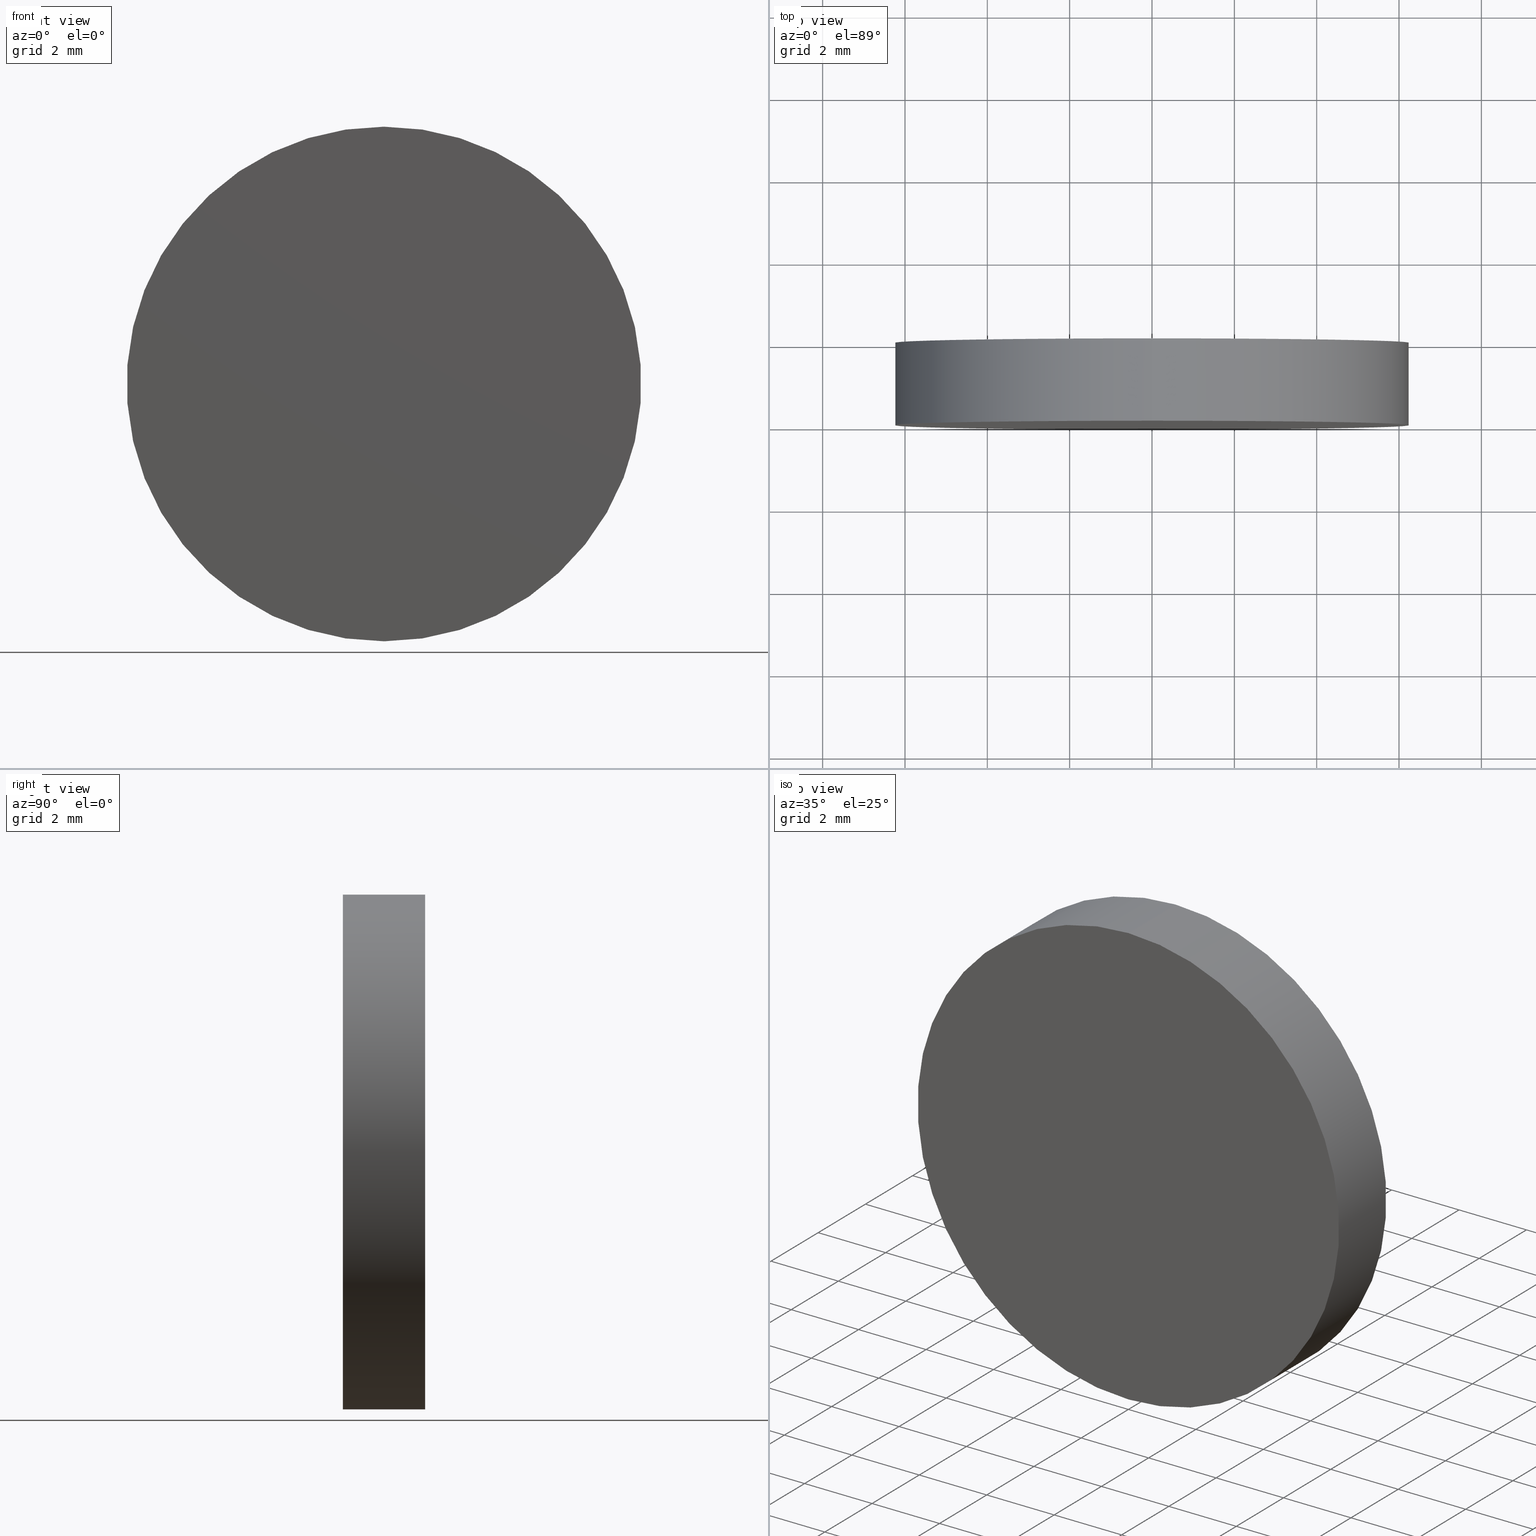
[diagram: canonical four-view strip — front | top / right | iso, engineering-drawing reading convention]
A machine part, canonical four-view strip (front | top / right | iso — engineering-drawing reading convention). The complete STEP part file that produces these views, byte-faithful:
ISO-10303-21;
HEADER;
FILE_DESCRIPTION (( 'STEP AP214' ),
    '1' );
FILE_NAME ('208587.STEP',
    '2019-07-25T05:33:53',
    ( 'user' ),
    ( '΢���й�' ),
    'SwSTEP 2.0',
    'SolidWorks 2016',
    '' );
FILE_SCHEMA (( 'AUTOMOTIVE_DESIGN' ));
ENDSEC;

DATA;
#1 = AXIS2_PLACEMENT_3D ( 'NONE', #48, #92, #8 ) ;
#2 = EDGE_LOOP ( 'NONE', ( #107, #28, #41, #119 ) ) ;
#3 =( GEOMETRIC_REPRESENTATION_CONTEXT ( 3 ) GLOBAL_UNCERTAINTY_ASSIGNED_CONTEXT ( ( #64 ) ) GLOBAL_UNIT_ASSIGNED_CONTEXT ( ( #111, #34, #103 ) ) REPRESENTATION_CONTEXT ( 'NONE', 'WORKASPACE' ) );
#4 = MANIFOLD_SOLID_BREP ( '͹̨-����1', #15 ) ;
#5 = ORIENTED_EDGE ( 'NONE', *, *, #47, .F. ) ;
#6 =( NAMED_UNIT ( * ) SI_UNIT ( $, .STERADIAN. ) SOLID_ANGLE_UNIT ( ) );
#7 = VERTEX_POINT ( 'NONE', #45 ) ;
#8 = DIRECTION ( 'NONE',  ( 1.000000000000000000, 0.0000000000000000000, 0.0000000000000000000 ) ) ;
#9 =( LENGTH_UNIT ( ) NAMED_UNIT ( * ) SI_UNIT ( .MILLI., .METRE. ) );
#10 = ADVANCED_FACE ( 'NONE', ( #53 ), #115, .F. ) ;
#11 = DIRECTION ( 'NONE',  ( -0.0000000000000000000, -1.000000000000000000, -0.0000000000000000000 ) ) ;
#12 = DIRECTION ( 'NONE',  ( 0.0000000000000000000, 1.000000000000000000, 0.0000000000000000000 ) ) ;
#13 =( GEOMETRIC_REPRESENTATION_CONTEXT ( 3 ) GLOBAL_UNCERTAINTY_ASSIGNED_CONTEXT ( ( #132 ) ) GLOBAL_UNIT_ASSIGNED_CONTEXT ( ( #55, #108, #6 ) ) REPRESENTATION_CONTEXT ( 'NONE', 'WORKASPACE' ) );
#14 = SURFACE_STYLE_FILL_AREA ( #126 ) ;
#15 = CLOSED_SHELL ( 'NONE', ( #52, #113, #49, #10 ) ) ;
#16 = MECHANICAL_DESIGN_GEOMETRIC_PRESENTATION_REPRESENTATION (  '', ( #100 ), #3 ) ;
#17 = UNCERTAINTY_MEASURE_WITH_UNIT (LENGTH_MEASURE( 1.000000000000000100E-005 ), #9, 'distance_accuracy_value', 'NONE');
#18 = VECTOR ( 'NONE', #23, 1000.000000000000000 ) ;
#19 = SURFACE_SIDE_STYLE ('',( #97 ) ) ;
#20 = MECHANICAL_DESIGN_GEOMETRIC_PRESENTATION_REPRESENTATION (  '', ( #42 ), #13 ) ;
#21 =( NAMED_UNIT ( * ) PLANE_ANGLE_UNIT ( ) SI_UNIT ( $, .RADIAN. ) );
#22 = DIRECTION ( 'NONE',  ( 0.0000000000000000000, 1.000000000000000000, 0.0000000000000000000 ) ) ;
#23 = DIRECTION ( 'NONE',  ( -0.0000000000000000000, -1.000000000000000000, -0.0000000000000000000 ) ) ;
#24 = DIRECTION ( 'NONE',  ( 0.0000000000000000000, 1.000000000000000000, 0.0000000000000000000 ) ) ;
#25 = LINE ( 'NONE', #105, #18 ) ;
#26 = PRODUCT_DEFINITION_SHAPE ( 'NONE', 'NONE',  #125 ) ;
#27 = AXIS2_PLACEMENT_3D ( 'NONE', #140, #58, #110 ) ;
#28 = ORIENTED_EDGE ( 'NONE', *, *, #54, .T. ) ;
#29 = PRESENTATION_LAYER_ASSIGNMENT (  '', '', ( #42 ) ) ;
#30 = VECTOR ( 'NONE', #11, 1000.000000000000000 ) ;
#31 = VERTEX_POINT ( 'NONE', #116 ) ;
#32 = FILL_AREA_STYLE_COLOUR ( '', #43 ) ;
#33 = ORIENTED_EDGE ( 'NONE', *, *, #62, .F. ) ;
#34 =( NAMED_UNIT ( * ) PLANE_ANGLE_UNIT ( ) SI_UNIT ( $, .RADIAN. ) );
#35 = CARTESIAN_POINT ( 'NONE',  ( 0.0000000000000000000, 2.000000000000000000, 0.0000000000000000000 ) ) ;
#36 = AXIS2_PLACEMENT_3D ( 'NONE', #35, #82, #95 ) ;
#37 = FACE_OUTER_BOUND ( 'NONE', #123, .T. ) ;
#38 = CARTESIAN_POINT ( 'NONE',  ( 0.0000000000000000000, 0.0000000000000000000, 0.0000000000000000000 ) ) ;
#39 = CARTESIAN_POINT ( 'NONE',  ( 0.0000000000000000000, 2.000000000000000000, 0.0000000000000000000 ) ) ;
#40 = DIRECTION ( 'NONE',  ( 0.0000000000000000000, -0.0000000000000000000, 1.000000000000000000 ) ) ;
#41 = ORIENTED_EDGE ( 'NONE', *, *, #78, .T. ) ;
#42 = STYLED_ITEM ( 'NONE', ( #75 ), #4 ) ;
#43 = COLOUR_RGB ( '',1.000000000000000000, 1.000000000000000000, 1.000000000000000000 ) ;
#44 =( GEOMETRIC_REPRESENTATION_CONTEXT ( 3 ) GLOBAL_UNCERTAINTY_ASSIGNED_CONTEXT ( ( #17 ) ) GLOBAL_UNIT_ASSIGNED_CONTEXT ( ( #9, #21, #93 ) ) REPRESENTATION_CONTEXT ( 'NONE', 'WORKASPACE' ) );
#45 = CARTESIAN_POINT ( 'NONE',  ( 7.654042494670955600E-016, 0.0000000000000000000, 6.249999999999998200 ) ) ;
#46 = SURFACE_STYLE_USAGE ( .BOTH. , #120 ) ;
#47 = EDGE_CURVE ( 'NONE', #31, #135, #109, .T. ) ;
#48 = CARTESIAN_POINT ( 'NONE',  ( 0.0000000000000000000, 0.0000000000000000000, 0.0000000000000000000 ) ) ;
#49 = ADVANCED_FACE ( 'NONE', ( #85 ), #50, .T. ) ;
#50 = PLANE ( 'NONE',  #51 ) ;
#51 = AXIS2_PLACEMENT_3D ( 'NONE', #39, #12, #84 ) ;
#52 = ADVANCED_FACE ( 'NONE', ( #129 ), #139, .T. ) ;
#53 = FACE_OUTER_BOUND ( 'NONE', #130, .T. ) ;
#54 = EDGE_CURVE ( 'NONE', #135, #7, #25, .T. ) ;
#55 =( LENGTH_UNIT ( ) NAMED_UNIT ( * ) SI_UNIT ( .MILLI., .METRE. ) );
#56 = ORIENTED_EDGE ( 'NONE', *, *, #62, .T. ) ;
#57 = PRODUCT_RELATED_PRODUCT_CATEGORY ( 'part', '', ( #65 ) ) ;
#58 = DIRECTION ( 'NONE',  ( -0.0000000000000000000, -1.000000000000000000, -0.0000000000000000000 ) ) ;
#59 = FILL_AREA_STYLE_COLOUR ( '', #124 ) ;
#60 = ORIENTED_EDGE ( 'NONE', *, *, #72, .T. ) ;
#61 = PRODUCT_DEFINITION_FORMATION_WITH_SPECIFIED_SOURCE ( '�κ�', '', #65, .NOT_KNOWN. ) ;
#62 = EDGE_CURVE ( 'NONE', #114, #7, #133, .T. ) ;
#63 = SHAPE_DEFINITION_REPRESENTATION ( #26, #90 ) ;
#64 = UNCERTAINTY_MEASURE_WITH_UNIT (LENGTH_MEASURE( 1.000000000000000100E-005 ), #111, 'distance_accuracy_value', 'NONE');
#65 = PRODUCT ( '208587', '208587', '', ( #80 ) ) ;
#66 = ORIENTED_EDGE ( 'NONE', *, *, #87, .T. ) ;
#67 = CYLINDRICAL_SURFACE ( 'NONE', #36, 6.249999999999998200 ) ;
#68 = AXIS2_PLACEMENT_3D ( 'NONE', #137, #73, #127 ) ;
#69 = ORIENTED_EDGE ( 'NONE', *, *, #47, .T. ) ;
#70 = APPLICATION_PROTOCOL_DEFINITION ( 'draft international standard', 'automotive_design', 1998, #136 ) ;
#71 = APPLICATION_CONTEXT ( 'automotive_design' ) ;
#72 = EDGE_CURVE ( 'NONE', #31, #114, #117, .T. ) ;
#73 = DIRECTION ( 'NONE',  ( 0.0000000000000000000, 1.000000000000000000, 0.0000000000000000000 ) ) ;
#74 = DIRECTION ( 'NONE',  ( 0.0000000000000000000, 1.000000000000000000, 0.0000000000000000000 ) ) ;
#75 = PRESENTATION_STYLE_ASSIGNMENT (( #91 ) ) ;
#76 = AXIS2_PLACEMENT_3D ( 'NONE', #138, #74, #128 ) ;
#77 = PRODUCT_DEFINITION_CONTEXT ( 'detailed design', #136, 'design' ) ;
#78 = EDGE_CURVE ( 'NONE', #7, #114, #89, .T. ) ;
#79 = PRESENTATION_STYLE_ASSIGNMENT (( #46 ) ) ;
#80 = PRODUCT_CONTEXT ( 'NONE', #71, 'mechanical' ) ;
#81 = APPLICATION_PROTOCOL_DEFINITION ( 'draft international standard', 'automotive_design', 1998, #71 ) ;
#82 = DIRECTION ( 'NONE',  ( -0.0000000000000000000, -1.000000000000000000, -0.0000000000000000000 ) ) ;
#83 = PRESENTATION_LAYER_ASSIGNMENT (  '', '', ( #100 ) ) ;
#84 = DIRECTION ( 'NONE',  ( 0.0000000000000000000, -0.0000000000000000000, 1.000000000000000000 ) ) ;
#85 = FACE_OUTER_BOUND ( 'NONE', #88, .T. ) ;
#86 = AXIS2_PLACEMENT_3D ( 'NONE', #38, #118, #40 ) ;
#87 = EDGE_CURVE ( 'NONE', #135, #31, #96, .T. ) ;
#88 = EDGE_LOOP ( 'NONE', ( #69, #66 ) ) ;
#89 = CIRCLE ( 'NONE', #131, 6.249999999999998200 ) ;
#90 = ADVANCED_BREP_SHAPE_REPRESENTATION ( '208587', ( #4, #1 ), #44 ) ;
#91 = SURFACE_STYLE_USAGE ( .BOTH. , #19 ) ;
#92 = DIRECTION ( 'NONE',  ( 0.0000000000000000000, 0.0000000000000000000, 1.000000000000000000 ) ) ;
#93 =( NAMED_UNIT ( * ) SI_UNIT ( $, .STERADIAN. ) SOLID_ANGLE_UNIT ( ) );
#94 = DIRECTION ( 'NONE',  ( 0.0000000000000000000, 0.0000000000000000000, 1.000000000000000000 ) ) ;
#95 = DIRECTION ( 'NONE',  ( 0.0000000000000000000, 0.0000000000000000000, -1.000000000000000000 ) ) ;
#96 = CIRCLE ( 'NONE', #68, 6.249999999999998200 ) ;
#97 = SURFACE_STYLE_FILL_AREA ( #102 ) ;
#98 = DIRECTION ( 'NONE',  ( 0.0000000000000000000, 0.0000000000000000000, 1.000000000000000000 ) ) ;
#99 = ORIENTED_EDGE ( 'NONE', *, *, #54, .F. ) ;
#100 = STYLED_ITEM ( 'NONE', ( #79 ), #90 ) ;
#101 = ORIENTED_EDGE ( 'NONE', *, *, #78, .F. ) ;
#102 = FILL_AREA_STYLE ('',( #32 ) ) ;
#103 =( NAMED_UNIT ( * ) SI_UNIT ( $, .STERADIAN. ) SOLID_ANGLE_UNIT ( ) );
#104 = CARTESIAN_POINT ( 'NONE',  ( 0.0000000000000000000, 0.0000000000000000000, 0.0000000000000000000 ) ) ;
#105 = CARTESIAN_POINT ( 'NONE',  ( 7.654042494670955600E-016, 2.000000000000000000, 6.249999999999998200 ) ) ;
#106 = CARTESIAN_POINT ( 'NONE',  ( 0.0000000000000000000, 2.000000000000000000, 0.0000000000000000000 ) ) ;
#107 = ORIENTED_EDGE ( 'NONE', *, *, #87, .F. ) ;
#108 =( NAMED_UNIT ( * ) PLANE_ANGLE_UNIT ( ) SI_UNIT ( $, .RADIAN. ) );
#109 = CIRCLE ( 'NONE', #134, 6.249999999999998200 ) ;
#110 = DIRECTION ( 'NONE',  ( 0.0000000000000000000, 0.0000000000000000000, -1.000000000000000000 ) ) ;
#111 =( LENGTH_UNIT ( ) NAMED_UNIT ( * ) SI_UNIT ( .MILLI., .METRE. ) );
#112 = CARTESIAN_POINT ( 'NONE',  ( 7.654042494670955600E-016, 2.000000000000000000, 6.249999999999998200 ) ) ;
#113 = ADVANCED_FACE ( 'NONE', ( #37 ), #67, .T. ) ;
#114 = VERTEX_POINT ( 'NONE', #121 ) ;
#115 = PLANE ( 'NONE',  #86 ) ;
#116 = CARTESIAN_POINT ( 'NONE',  ( 0.0000000000000000000, 2.000000000000000000, -6.249999999999998200 ) ) ;
#117 = LINE ( 'NONE', #122, #30 ) ;
#118 = DIRECTION ( 'NONE',  ( 0.0000000000000000000, 1.000000000000000000, 0.0000000000000000000 ) ) ;
#119 = ORIENTED_EDGE ( 'NONE', *, *, #72, .F. ) ;
#120 = SURFACE_SIDE_STYLE ('',( #14 ) ) ;
#121 = CARTESIAN_POINT ( 'NONE',  ( 0.0000000000000000000, 0.0000000000000000000, -6.249999999999998200 ) ) ;
#122 = CARTESIAN_POINT ( 'NONE',  ( 0.0000000000000000000, 2.000000000000000000, -6.249999999999998200 ) ) ;
#123 = EDGE_LOOP ( 'NONE', ( #99, #5, #60, #56 ) ) ;
#124 = COLOUR_RGB ( '',1.000000000000000000, 1.000000000000000000, 1.000000000000000000 ) ;
#125 = PRODUCT_DEFINITION ( 'δ֪', '', #61, #77 ) ;
#126 = FILL_AREA_STYLE ('',( #59 ) ) ;
#127 = DIRECTION ( 'NONE',  ( 0.0000000000000000000, 0.0000000000000000000, 1.000000000000000000 ) ) ;
#128 = DIRECTION ( 'NONE',  ( 0.0000000000000000000, 0.0000000000000000000, 1.000000000000000000 ) ) ;
#129 = FACE_OUTER_BOUND ( 'NONE', #2, .T. ) ;
#130 = EDGE_LOOP ( 'NONE', ( #33, #101 ) ) ;
#131 = AXIS2_PLACEMENT_3D ( 'NONE', #104, #22, #94 ) ;
#132 = UNCERTAINTY_MEASURE_WITH_UNIT (LENGTH_MEASURE( 1.000000000000000100E-005 ), #55, 'distance_accuracy_value', 'NONE');
#133 = CIRCLE ( 'NONE', #76, 6.249999999999998200 ) ;
#134 = AXIS2_PLACEMENT_3D ( 'NONE', #106, #24, #98 ) ;
#135 = VERTEX_POINT ( 'NONE', #112 ) ;
#136 = APPLICATION_CONTEXT ( 'automotive_design' ) ;
#137 = CARTESIAN_POINT ( 'NONE',  ( 0.0000000000000000000, 2.000000000000000000, 0.0000000000000000000 ) ) ;
#138 = CARTESIAN_POINT ( 'NONE',  ( 0.0000000000000000000, 0.0000000000000000000, 0.0000000000000000000 ) ) ;
#139 = CYLINDRICAL_SURFACE ( 'NONE', #27, 6.249999999999998200 ) ;
#140 = CARTESIAN_POINT ( 'NONE',  ( 0.0000000000000000000, 2.000000000000000000, 0.0000000000000000000 ) ) ;
ENDSEC;
END-ISO-10303-21;
